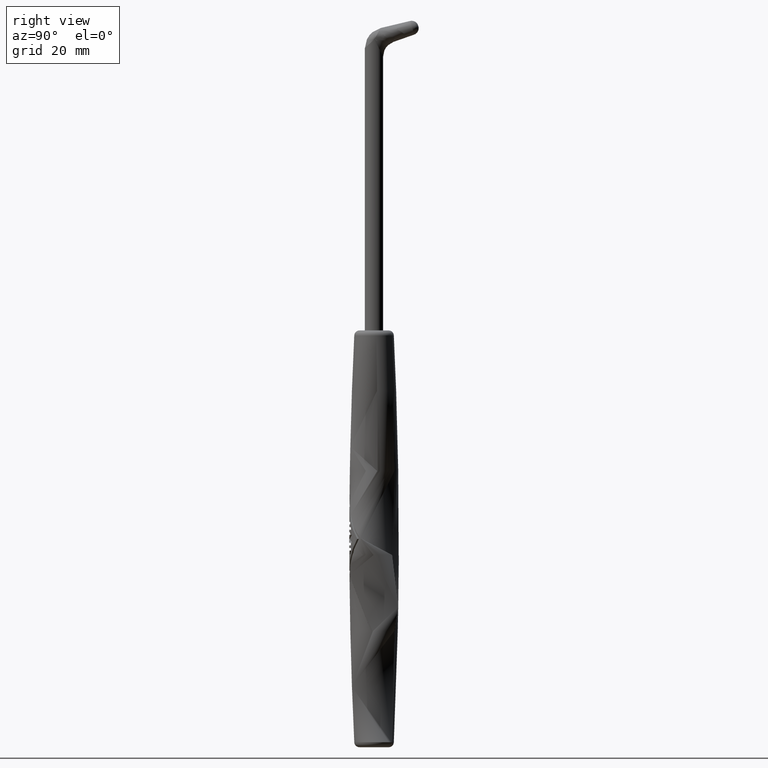
[diagram: clean part render]
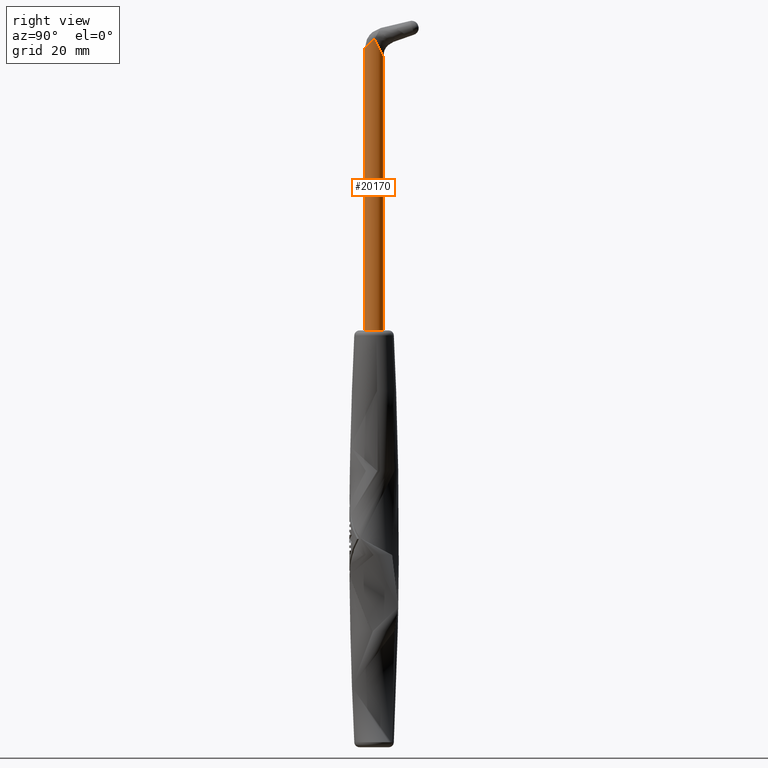
[diagram: same view with one face highlighted and labeled with its STEP entity id]
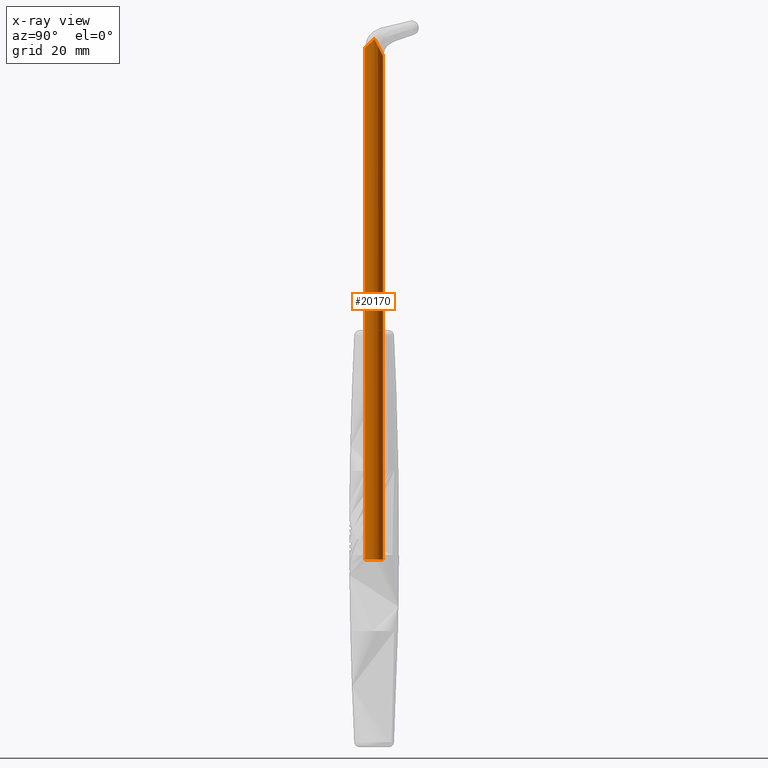
[diagram: x-ray of the same camera — body ghosted, the highlighted face saturated]
A machine part, right view. The second image highlights one B-rep face of the part: STEP entity #20170.
The next image is the same camera in x-ray: the body ghosted, the highlighted face saturated — about 0% of this face is hidden behind the body in this view.
In plain terms, the highlighted cylindrical surface (edge-blend (fillet) strip) has radius 1.75 mm, axis along (-0, 0, 1).
Its self-contained STEP definition (entity closure, byte-faithful):
#15970=CARTESIAN_POINT('',(32.788637,70.370263,3.10862446895044E-15));
#15980=DIRECTION('',(0.,1.,0.));
#15990=DIRECTION('',(-1.,0.,0.));
#16000=AXIS2_PLACEMENT_3D('',#15970,#15980,#15990);
#16010=CIRCLE('',#16000,1.75);
#16020=CARTESIAN_POINT('',(31.038637,70.370263,3.10862446895044E-15));
#16030=VERTEX_POINT('',#16020);
#16040=CARTESIAN_POINT('',(34.538637,70.370263,3.32293765880123E-15));
#16050=VERTEX_POINT('',#16040);
#16060=EDGE_CURVE('',#16030,#16050,#16010,.T.);
#16490=CARTESIAN_POINT('',(32.788637,70.370263,3.10862446895044E-15));
#16500=DIRECTION('',(0.,1.,0.));
#16510=DIRECTION('',(-1.,0.,0.));
#16520=AXIS2_PLACEMENT_3D('',#16490,#16500,#16510);
#16530=CYLINDRICAL_SURFACE('',#16520,1.75);
#16540=CARTESIAN_POINT('',(32.8818339103872,170.300034090721,
1.74751661963321));
#16550=CARTESIAN_POINT('',(32.9056967044384,170.251268774803,
1.74624399157704));
#16560=CARTESIAN_POINT('',(32.9296865955682,170.202588577831,
1.74447193718717));
#16570=CARTESIAN_POINT('',(32.9774791175719,170.105269122261,
1.73994644469559));
#16580=CARTESIAN_POINT('',(33.001345146196,170.056672140882,
1.73719170132104));
#16590=CARTESIAN_POINT('',(33.0489921630432,169.959653746494,
1.73069109803787));
#16600=CARTESIAN_POINT('',(33.0727720454963,169.911234578219,
1.72694822988534));
#16610=CARTESIAN_POINT('',(33.1202199063838,169.814626524287,
1.71846776987033));
#16620=CARTESIAN_POINT('',(33.1438867573744,169.766439925433,
1.71373405807069));
#16630=CARTESIAN_POINT('',(33.1910773432438,169.670360567442,
1.70326838907484));
#16640=CARTESIAN_POINT('',(33.2145999418911,169.622470110411,
1.69754141735576));
#16650=CARTESIAN_POINT('',(33.2614768294399,169.527034327311,
1.68508383455915));
#16660=CARTESIAN_POINT('',(33.2848299694869,169.479491327112,
1.67835909464768));
#16670=CARTESIAN_POINT('',(33.3313376529431,169.384812106845,
1.66390062961375));
#16680=CARTESIAN_POINT('',(33.3544910515783,169.337678201889,
1.65617393063015));
#16690=CARTESIAN_POINT('',(33.4005688080341,169.2438791282,
1.63970539054041));
#16700=CARTESIAN_POINT('',(33.423491593676,169.197217142169,
1.63097197551537));
#16710=CARTESIAN_POINT('',(33.473579560092,169.095259993717,
1.61065680662718));
#16720=CARTESIAN_POINT('',(33.5007247554387,169.040006024938,
1.5988507358513));
#16730=CARTESIAN_POINT('',(33.5545809842655,168.930385347839,
1.57375423334346));
#16740=CARTESIAN_POINT('',(33.5812897573226,168.876023200578,
1.56048389282985));
#16750=CARTESIAN_POINT('',(33.6342070796374,168.768320527889,
1.53244774089826));
#16760=CARTESIAN_POINT('',(33.660414038645,168.714983193645,
1.51770570558163));
#16770=CARTESIAN_POINT('',(33.7122621127561,168.60946357165,
1.48671292646737));
#16780=CARTESIAN_POINT('',(33.7379019018592,168.557283932035,
1.47049020405653));
#16790=CARTESIAN_POINT('',(33.7885210371813,168.454272060163,
1.43653898494477));
#16800=CARTESIAN_POINT('',(33.8134996554843,168.403441250473,
1.41884513554254));
#16810=CARTESIAN_POINT('',(33.8627414551688,168.303238754513,
1.38192929504464));
#16820=CARTESIAN_POINT('',(33.8870042869179,168.25386771876,
1.3627463458886));
#16830=CARTESIAN_POINT('',(33.9347275241281,168.15676155898,
1.32284662071765));
#16840=CARTESIAN_POINT('',(33.9581884275815,168.109025355475,
1.30217616394806));
#16850=CARTESIAN_POINT('',(34.0042204260014,168.015366401193,
1.25929456568071));
#16860=CARTESIAN_POINT('',(34.0267942025498,167.969438124418,
1.2371366479941));
#16870=CARTESIAN_POINT('',(34.0672522280222,167.887125353504,
1.19512459722734));
#16880=CARTESIAN_POINT('',(34.085204136024,167.850602714377,
1.1756445913425));
#16890=CARTESIAN_POINT('',(34.1203707801968,167.779058975759,
1.13563962079819));
#16900=CARTESIAN_POINT('',(34.1375890343932,167.744030676089,
1.11515543851306));
#16910=CARTESIAN_POINT('',(34.1712262036878,167.675601887621,
1.07315052069967));
#16920=CARTESIAN_POINT('',(34.1876492172827,167.642193017562,
1.05167732883803));
#16930=CARTESIAN_POINT('',(34.2196328018527,167.577131242771,
1.00770491211462));
#16940=CARTESIAN_POINT('',(34.2351990883786,167.545466668148,
0.985259489424362));
#16950=CARTESIAN_POINT('',(34.2653862537124,167.4840620215,
0.939383739889866));
#16960=CARTESIAN_POINT('',(34.280015418545,167.45430505105,
0.916015738996426));
#16970=CARTESIAN_POINT('',(34.3082756828337,167.396822481249,
0.868298372563295));
#16980=CARTESIAN_POINT('',(34.3219171710166,167.369075710672,
0.844016714812892));
#16990=CARTESIAN_POINT('',(34.3481290248157,167.315761893308,
0.794507349216558));
#17000=CARTESIAN_POINT('',(34.3607130291013,167.290167068804,
0.769354604818914));
#17010=CARTESIAN_POINT('',(34.3847396045153,167.241299899978,
0.718141686443236));
#17020=CARTESIAN_POINT('',(34.3961996661023,167.217991949096,
0.692162117796169));
#17030=CARTESIAN_POINT('',(34.4176091726527,167.174449130436,
0.640071227923103));
#17040=CARTESIAN_POINT('',(34.4276017381472,167.154126515605,
0.614089941053485));
#17050=CARTESIAN_POINT('',(34.446377798676,167.115940814723,
0.561381739864796));
#17060=CARTESIAN_POINT('',(34.4551851060963,167.098029279349,
0.534734921020235));
#17070=CARTESIAN_POINT('',(34.4715296951512,167.06478949429,
0.480768583958522));
#17080=CARTESIAN_POINT('',(34.479094308888,167.049405643716,
0.453528107745736));
#17090=CARTESIAN_POINT('',(34.4928997614486,167.021330345034,
0.398455803406721));
#17100=CARTESIAN_POINT('',(34.4991703073472,167.008578472519,
0.37069714383954));
#17110=CARTESIAN_POINT('',(34.5103368937928,166.98587012978,
0.314704961214894));
#17120=CARTESIAN_POINT('',(34.5152638528903,166.975850776855,
0.286535577248727));
#17130=CARTESIAN_POINT('',(34.5237127517235,166.958669389667,
0.229812747433579));
#17140=CARTESIAN_POINT('',(34.5272621228544,166.951451568431,
0.201309723403148));
#17150=CARTESIAN_POINT('',(34.5329322665615,166.939921093465,
0.144039124704822));
#17160=CARTESIAN_POINT('',(34.5350742937252,166.935565216286,
0.115308881336235));
#17170=CARTESIAN_POINT('',(34.5379208525574,166.929776659732,
0.0577048169987993));
#17180=CARTESIAN_POINT('',(34.538637,166.928320359028,0.0288582951468016
));
#17190=CARTESIAN_POINT('',(34.538637,166.928320359028,
-0.0288582951492005));
#17200=CARTESIAN_POINT('',(34.5379208521122,166.929776660637,
-0.0577048260094797));
#17210=CARTESIAN_POINT('',(34.5350742932765,166.935565217198,
-0.115308890414527));
#17220=CARTESIAN_POINT('',(34.5329322634824,166.939921099726,
-0.144039155806871));
#17230=CARTESIAN_POINT('',(34.5272621197326,166.951451574779,
-0.201309754932004));
#17240=CARTESIAN_POINT('',(34.5237127434636,166.958669406464,
-0.229812802890076));
#17250=CARTESIAN_POINT('',(34.5152638444699,166.975850793979,
-0.286535633777382));
#17260=CARTESIAN_POINT('',(34.5103368792824,166.985870159288,
-0.314705033976076));
#17270=CARTESIAN_POINT('',(34.4991702924781,167.008578502756,
-0.370697218395039));
#17280=CARTESIAN_POINT('',(34.4928997415625,167.021330385475,
-0.398455882738062));
#17290=CARTESIAN_POINT('',(34.4790942884572,167.049405685265,
-0.453528189245358));
#17300=CARTESIAN_POINT('',(34.4715296720268,167.064789541318,
-0.480768660312594));
#17310=CARTESIAN_POINT('',(34.4551850822854,167.098029327773,
-0.534734999636216));
#17320=CARTESIAN_POINT('',(34.4463777746216,167.115940863644,
-0.561381807392664));
#17330=CARTESIAN_POINT('',(34.4276017133546,167.154126566026,
-0.614090010648896));
#17340=CARTESIAN_POINT('',(34.4176091488594,167.174449178827,
-0.640071285816201));
#17350=CARTESIAN_POINT('',(34.3961996408474,167.21799200046,
-0.692162179240732));
#17360=CARTESIAN_POINT('',(34.384739581594,167.241299946597,
-0.718141735302203));
#17370=CARTESIAN_POINT('',(34.3607130054647,167.290167116877,
-0.769354655198333));
#17380=CARTESIAN_POINT('',(34.3481290047785,167.315761934063,
-0.794507387064875));
#17390=CARTESIAN_POINT('',(34.3219171503732,167.36907575266,
-0.84401675380256));
#17400=CARTESIAN_POINT('',(34.3082756657623,167.396822515973,
-0.868298401389905));
#17410=CARTESIAN_POINT('',(34.2800154009841,167.454305086769,
-0.916015768646253));
#17420=CARTESIAN_POINT('',(34.2653862393937,167.484062050626,
-0.939383761651787));
#17430=CARTESIAN_POINT('',(34.2351990736577,167.545466698092,
-0.985259511794234));
#17440=CARTESIAN_POINT('',(34.2196327899436,167.577131266996,
-1.00770492848914));
#17450=CARTESIAN_POINT('',(34.1876492050731,167.642193042399,
-1.05167734562284));
#17460=CARTESIAN_POINT('',(34.1712261938464,167.675601907642,
-1.07315053299066));
#17470=CARTESIAN_POINT('',(34.1375890243204,167.744030696581,
-1.11515545109032));
#17480=CARTESIAN_POINT('',(34.1203707720683,167.779058992295,
-1.13563963004623));
#17490=CARTESIAN_POINT('',(34.08520412772,167.850602731271,
-1.17564460078769));
#17500=CARTESIAN_POINT('',(34.0672522199581,167.887125369911,
-1.19512460560227));
#17510=CARTESIAN_POINT('',(34.0267941926085,167.969438144644,
-1.23713665831583));
#17520=CARTESIAN_POINT('',(34.0042204165623,168.015366420399,
-1.25929457447513));
#17530=CARTESIAN_POINT('',(33.9581884179386,168.109025375094,
-1.3021761729296));
#17540=CARTESIAN_POINT('',(33.934727516512,168.156761574477,
-1.32284662708643));
#17550=CARTESIAN_POINT('',(33.8870042791538,168.253867734558,
-1.36274635237857));
#17560=CARTESIAN_POINT('',(33.8627414489583,168.303238767151,
-1.38192929970185));
#17570=CARTESIAN_POINT('',(33.8134996491668,168.403441263328,
-1.41884514027735));
#17580=CARTESIAN_POINT('',(33.7885210320535,168.454272070599,
-1.43653898838533));
#17590=CARTESIAN_POINT('',(33.7379018966485,168.557283942639,
-1.47049020755021));
#17600=CARTESIAN_POINT('',(33.7122621084635,168.609463580386,
-1.4867129290345));
#17610=CARTESIAN_POINT('',(33.6604140342945,168.714983202499,
-1.51770570818096));
#17620=CARTESIAN_POINT('',(33.6342070760006,168.768320535291,
-1.53244774282625));
#17630=CARTESIAN_POINT('',(33.5812897536424,168.876023208068,
-1.56048389477844));
#17640=CARTESIAN_POINT('',(33.5545809811394,168.930385354201,
-1.57375423480135));
#17650=CARTESIAN_POINT('',(33.5007247522803,169.040006031367,
-1.5988507373219));
#17660=CARTESIAN_POINT('',(33.4735795577721,169.095259998439,
-1.61065680756926));
#17670=CARTESIAN_POINT('',(33.4234915917186,169.197217146153,
-1.63097197630828));
#17680=CARTESIAN_POINT('',(33.4005688065874,169.243879131145,
-1.63970539105829));
#17690=CARTESIAN_POINT('',(33.3544910501277,169.337678204842,
-1.65617393114774));
#17700=CARTESIAN_POINT('',(33.3313376516293,169.384812109519,
-1.6639006300229));
#17710=CARTESIAN_POINT('',(33.2848299681712,169.479491329791,
-1.67835909505601));
#17720=CARTESIAN_POINT('',(33.261476828235,169.527034329764,
-1.68508383487992));
#17730=CARTESIAN_POINT('',(33.214599940686,169.622470112865,
-1.69754141767545));
#17740=CARTESIAN_POINT('',(33.1910773421276,169.670360569715,
-1.70326838932283));
#17750=CARTESIAN_POINT('',(33.1438867562592,169.766439927703,
-1.71373405831756));
#17760=CARTESIAN_POINT('',(33.120219905339,169.814626526414,
-1.71846777005738));
#17770=CARTESIAN_POINT('',(33.0727720444538,169.911234580341,
-1.72694823007132));
#17780=CARTESIAN_POINT('',(33.0489921620553,169.959653748505,
-1.73069109817287));
#17790=CARTESIAN_POINT('',(33.0013451452113,170.056672142887,
-1.73719170145516));
#17800=CARTESIAN_POINT('',(32.9774791166277,170.105269124184,
-1.7399464447851));
#17810=CARTESIAN_POINT('',(32.929686594628,170.202588579745,
-1.74447193727608));
#17820=CARTESIAN_POINT('',(32.9056967044395,170.25126877481,
-1.74624399157697));
#17830=CARTESIAN_POINT('',(32.8818339103872,170.300034090721,
-1.74751661963321));
#17840=B_SPLINE_CURVE_WITH_KNOTS('',3,(#16540,#16550,#16560,#16570,
#16580,#16590,#16600,#16610,#16620,#16630,#16640,#16650,#16660,#16670,
#16680,#16690,#16700,#16710,#16720,#16730,#16740,#16750,#16760,#16770,
#16780,#16790,#16800,#16810,#16820,#16830,#16840,#16850,#16860,#16870,
#16880,#16890,#16900,#16910,#16920,#16930,#16940,#16950,#16960,#16970,
#16980,#16990,#17000,#17010,#17020,#17030,#17040,#17050,#17060,#17070,
#17080,#17090,#17100,#17110,#17120,#17130,#17140,#17150,#17160,#17170,
#17180,#17190,#17200,#17210,#17220,#17230,#17240,#17250,#17260,#17270,
#17280,#17290,#17300,#17310,#17320,#17330,#17340,#17350,#17360,#17370,
#17380,#17390,#17400,#17410,#17420,#17430,#17440,#17450,#17460,#17470,
#17480,#17490,#17500,#17510,#17520,#17530,#17540,#17550,#17560,#17570,
#17580,#17590,#17600,#17610,#17620,#17630,#17640,#17650,#17660,#17670,
#17680,#17690,#17700,#17710,#17720,#17730,#17740,#17750,#17760,#17770,
#17780,#17790,#17800,#17810,#17820,#17830),.UNSPECIFIED.,.F.,.F.,(4,2,2,
2,2,2,2,2,2,2,2,2,2,2,2,2,2,2,2,2,2,2,2,2,2,2,2,2,2,2,2,2,2,2,2,2,2,2,2,
2,2,2,2,2,2,2,2,2,2,2,2,2,2,2,2,2,2,2,2,2,2,2,2,2,4),(0.,
0.162799390849189,0.325266788231872,0.487274679265505,0.648696067641975,
0.809376221792196,0.969203866193017,1.12803609025775,1.28573264515915,
1.47316581196533,1.65847958874629,1.84137693677248,2.02157362763913,
2.19860181458313,2.37229421414419,2.54228916022582,2.70825749801857,
2.84240937059637,2.97335312531833,3.10087871261957,3.22481393892224,
3.34486844051977,3.46103421673881,3.5731987471524,3.68133301004849,
3.78256247144295,3.88011838530889,3.97419242748597,4.06510618151262,
4.1532281888193,4.23917161247167,4.32358860690368,4.40722169963656,
4.49085479237639,4.57527183979142,4.66121550527819,4.74933810838272,
4.84025295532393,4.93432867767513,5.03188689394301,5.13311927084051,
5.24125714320837,5.3534258519196,5.4695963156386,5.58965595544853,
5.71359672402585,5.84112820599283,5.97207816790532,6.10623652458081,
6.27221303142287,6.44221648509276,6.61591768861235,6.79295493801229,
6.97316092644832,7.15606777163727,7.34139122154182,7.52883421504984,
7.68653906380888,7.84537966070688,8.00521574786088,8.16590440579406,
8.32733435202593,8.48935084594445,8.65182688385247,8.81463494561518),
.UNSPECIFIED.);
#17850=CARTESIAN_POINT('',(32.8818339103872,170.300034090721,
1.74751661963321));
#17860=VERTEX_POINT('',#17850);
#17870=CARTESIAN_POINT('',(34.538637,166.928320359028,
3.32293765880123E-15));
#17880=VERTEX_POINT('',#17870);
#17890=EDGE_CURVE('',#17860,#17880,#17840,.T.);
#17900=ORIENTED_EDGE('',*,*,#17890,.F.);
#17910=CARTESIAN_POINT('',(34.538637,70.370263,3.32293765880123E-15));
#17920=DIRECTION('',(0.,1.,0.));
#17930=VECTOR('',#17920,1.);
#17940=LINE('',#17910,#17930);
#17950=EDGE_CURVE('',#16050,#17880,#17940,.T.);
#17960=ORIENTED_EDGE('',*,*,#17950,.T.);
#17970=ORIENTED_EDGE('',*,*,#16060,.T.);
#17980=CARTESIAN_POINT('',(31.038637,70.370263,3.10862446895044E-15));
#17990=DIRECTION('',(0.,1.,0.));
#18000=VECTOR('',#17990,1.);
#18010=LINE('',#17980,#18000);
#18020=CARTESIAN_POINT('',(31.038637,168.542042381813,
3.10862446895044E-15));
#18030=VERTEX_POINT('',#18020);
#18040=EDGE_CURVE('',#16030,#18030,#18010,.T.);
#18050=ORIENTED_EDGE('',*,*,#18040,.F.);
#18060=CARTESIAN_POINT('',(32.8818339103872,170.300034090721,
-1.74751661963321));
#18070=CARTESIAN_POINT('',(32.8737130166793,170.292343413999,
-1.74794971548744));
#18080=CARTESIAN_POINT('',(32.8655073950846,170.2847398914,
-1.7483299870162));
#18090=CARTESIAN_POINT('',(32.8491736240152,170.269445212637,
-1.74897173160947));
#18100=CARTESIAN_POINT('',(32.8410041741513,170.261798327739,
-1.74923539866368));
#18110=CARTESIAN_POINT('',(32.8164930987876,170.238855429176,
-1.74985462830517));
#18120=CARTESIAN_POINT('',(32.8001442365843,170.223563459177,
-1.75003850408097));
#18130=CARTESIAN_POINT('',(32.75111240794,170.177669552262,
-1.74990294003556));
#18140=CARTESIAN_POINT('',(32.7184080433076,170.147099853308,
-1.74889572994675));
#18150=CARTESIAN_POINT('',(32.6531484743628,170.08590318285,
-1.74505337063615));
#18160=CARTESIAN_POINT('',(32.6205522360877,170.055333818733,
-1.74221580285392));
#18170=CARTESIAN_POINT('',(32.555610367095,169.994137148272,
-1.73472389281858));
#18180=CARTESIAN_POINT('',(32.5232224913506,169.963566106637,
-1.73006457221018));
#18190=CARTESIAN_POINT('',(32.4588022570885,169.902369436334,
-1.71894663805388));
#18200=CARTESIAN_POINT('',(32.4267294120209,169.871801433272,
-1.71248103324567));
#18210=CARTESIAN_POINT('',(32.3630331086988,169.810604762812,
-1.69777198815931));
#18220=CARTESIAN_POINT('',(32.3313710398862,169.780035066247,
-1.68951952369823));
#18230=CARTESIAN_POINT('',(32.2685986908782,169.71883839579,
-1.67126555799536));
#18240=CARTESIAN_POINT('',(32.2374489705472,169.68826905769,
-1.66125258411549));
#18250=CARTESIAN_POINT('',(32.1912081044137,169.642375168765,
-1.64494556068171));
#18260=CARTESIAN_POINT('',(32.1758666380311,169.627083216241,
-1.63929242843233));
#18270=CARTESIAN_POINT('',(32.1529810314545,169.604140317932,
-1.63049326601601));
#18280=CARTESIAN_POINT('',(32.1453725465435,169.596493435955,
-1.62750657257724));
#18290=CARTESIAN_POINT('',(32.1339921729528,169.585022493101,
-1.62294696492642));
#18300=CARTESIAN_POINT('',(32.1302040220449,169.581198984853,
-1.62141380112631));
#18310=CARTESIAN_POINT('',(32.1226383516983,169.573551576133,
-1.61832088976597));
#18320=CARTESIAN_POINT('',(32.1189851325081,169.569637253403,
-1.61681297404693));
#18330=CARTESIAN_POINT('',(32.1117655768605,169.562719982257,
-1.61380235619167));
#18340=CARTESIAN_POINT('',(32.1080618754804,169.559937031455,
-1.61224440488685));
#18350=CARTESIAN_POINT('',(32.1010475217495,169.553968227419,
-1.60926543053615));
#18360=CARTESIAN_POINT('',(32.0975456828709,169.550984292657,
-1.60776469267868));
#18370=CARTESIAN_POINT('',(32.0870547730827,169.54203199317,
-1.60322813119501));
#18380=CARTESIAN_POINT('',(32.0800804220924,169.536064119388,
-1.6001580039814));
#18390=CARTESIAN_POINT('',(32.0592193132849,169.518158722119,
-1.59081176554379));
#18400=CARTESIAN_POINT('',(32.045391993365,169.506224393687,
-1.58439865416571));
#18410=CARTESIAN_POINT('',(32.00417550198,169.470407208961,
-1.56462420611024));
#18420=CARTESIAN_POINT('',(31.9770319151832,169.446549792438,
-1.55071787430883));
#18430=CARTESIAN_POINT('',(31.9235304475768,169.39878975717,
-1.52151878414446));
#18440=CARTESIAN_POINT('',(31.8971504304843,169.374932558043,
-1.50621394342115));
#18450=CARTESIAN_POINT('',(31.8452469582549,169.327172522773,
-1.47426048549915));
#18460=CARTESIAN_POINT('',(31.8197012020443,169.303314311826,
-1.45759805683956));
#18470=CARTESIAN_POINT('',(31.7695373965672,169.25555427663,
-1.42297744865094));
#18480=CARTESIAN_POINT('',(31.744898615864,169.231697893823,
-1.40500495815032));
#18490=CARTESIAN_POINT('',(31.6966113998375,169.183937858553,
-1.3678116970531));
#18500=CARTESIAN_POINT('',(31.6729438695468,169.160080459084,
-1.34857612970262));
#18510=CARTESIAN_POINT('',(31.6266650437211,169.112320423816,
-1.30891173530862));
#18520=CARTESIAN_POINT('',(31.6040346183904,169.088463224808,
-1.28846650869173));
#18530=CARTESIAN_POINT('',(31.5709254009163,169.052646050926,
-1.2569449857049));
#18540=CARTESIAN_POINT('',(31.5600243831917,169.040711733027,
-1.24629180888459));
#18550=CARTESIAN_POINT('',(31.5438858759548,169.022806335911,
-1.23010271969175));
#18560=CARTESIAN_POINT('',(31.5385413898594,169.016838462393,
-1.2246709873638));
#18570=CARTESIAN_POINT('',(31.5305784034439,169.00788616285,
-1.21647157108834));
#18580=CARTESIAN_POINT('',(31.5279330788765,169.004902258246,
-1.21372984641451));
#18590=CARTESIAN_POINT('',(31.5226591142078,168.998932873313,
-1.20822784244032));
#18600=CARTESIAN_POINT('',(31.5202154235394,168.995652467188,
-1.20566301980984));
#18610=CARTESIAN_POINT('',(31.5152174500431,168.990859020139,
-1.2003803009793));
#18620=CARTESIAN_POINT('',(31.5127071325961,168.989438434672,
-1.19771230348624));
#18630=CARTESIAN_POINT('',(31.508018788043,168.985908437638,
-1.19269810435609));
#18640=CARTESIAN_POINT('',(31.505682912107,168.984144166732,
-1.19018510345967));
#18650=CARTESIAN_POINT('',(31.4986973021868,168.978851039764,
-1.18262532713074));
#18660=CARTESIAN_POINT('',(31.4940698408032,168.975322487941,
-1.17755804897895));
#18670=CARTESIAN_POINT('',(31.4802775237675,168.964735745634,
-1.16227528214918));
#18680=CARTESIAN_POINT('',(31.4712022529584,168.957679511926,
-1.15197831492302));
#18690=CARTESIAN_POINT('',(31.4443449274594,168.936502118495,
-1.12077302761672));
#18700=CARTESIAN_POINT('',(31.4269275732669,168.922396550689,
-1.09954571933988));
#18710=CARTESIAN_POINT('',(31.3931148583757,168.894157704676,
-1.05630076834268));
#18720=CARTESIAN_POINT('',(31.3767153537935,168.88005222202,
-1.0342778256329));
#18730=CARTESIAN_POINT('',(31.3449741833676,168.851813376006,
-0.989490287465275));
#18740=CARTESIAN_POINT('',(31.3296283429813,168.837707529752,
-0.966719741919608));
#18750=CARTESIAN_POINT('',(31.300028983011,168.809468683755,
-0.920488763549186));
#18760=CARTESIAN_POINT('',(31.2857718504947,168.795363492527,
-0.897022685345857));
#18770=CARTESIAN_POINT('',(31.2583798255575,168.767124646513,
-0.849450609030433));
#18780=CARTESIAN_POINT('',(31.2452419011399,168.753019091902,
-0.825339276060906));
#18790=CARTESIAN_POINT('',(31.220117849448,168.724780245889,
-0.776531412947988));
#18800=CARTESIAN_POINT('',(31.2081286502498,168.710674756218,
-0.751828910900399));
#18810=CARTESIAN_POINT('',(31.1910281359239,168.689497366691,
-0.714376839209618));
#18820=CARTESIAN_POINT('',(31.1854745487442,168.682441136773,
-0.70182512452883));
#18830=CARTESIAN_POINT('',(31.1773670013698,168.671854394522,
-0.682902686992538));
#18840=CARTESIAN_POINT('',(31.1747015517456,168.668325842794,
-0.676579232044793));
#18850=CARTESIAN_POINT('',(31.1707593314389,168.663032715805,
-0.667070927045719));
#18860=CARTESIAN_POINT('',(31.1694546020654,168.661268422408,
-0.663897684021718));
#18870=CARTESIAN_POINT('',(31.1668623690911,168.657737784003,
-0.657539994116148));
#18880=CARTESIAN_POINT('',(31.1656651231369,168.65551999954,
-0.654580573162853));
#18890=CARTESIAN_POINT('',(31.1629878726754,168.652950931351,
-0.647902282753887));
#18900=CARTESIAN_POINT('',(31.1615478533967,168.652962200081,
-0.644278500163942));
#18910=CARTESIAN_POINT('',(31.1588224311594,168.651710954408,
-0.637352565463912));
#18920=CARTESIAN_POINT('',(31.1574720389725,168.651085938437,
-0.633888548653944));
#18930=CARTESIAN_POINT('',(31.1534541076416,168.649210867709,
-0.623483919224714));
#18940=CARTESIAN_POINT('',(31.1508197147446,168.647960922566,
-0.616530477057174));
#18950=CARTESIAN_POINT('',(31.1430497052125,168.644210531283,
-0.595620361071451));
#18960=CARTESIAN_POINT('',(31.138047542016,168.641711086262,
-0.581614649803032));
#18970=CARTESIAN_POINT('',(31.1235782766676,168.634208304268,
-0.539410917819829));
#18980=CARTESIAN_POINT('',(31.1146505449652,168.62921297329,
-0.511032330468755));
#18990=CARTESIAN_POINT('',(31.0900492142285,168.614191392909,
-0.425251870869701));
#19000=CARTESIAN_POINT('',(31.0765725459386,168.604229061761,
-0.36725310727777));
#19010=CARTESIAN_POINT('',(31.0555833265446,168.584190782059,
-0.250129341012848));
#19020=CARTESIAN_POINT('',(31.0480810044909,168.574228677172,
-0.191061307885118));
#19030=CARTESIAN_POINT('',(31.0413633603415,168.559207112932,
-0.10207609059683));
#19040=CARTESIAN_POINT('',(31.0398808043466,168.554211796604,
-0.0723633751373377));
#19050=CARTESIAN_POINT('',(31.0387940177361,168.546709015332,
-0.0277614340960883));
#19060=CARTESIAN_POINT('',(31.0386212856952,168.544209571013,
-0.0128902665455744));
#19070=CARTESIAN_POINT('',(31.0386465392142,168.54045917974,
0.00941680314552497));
#19080=CARTESIAN_POINT('',(31.0387023541931,168.539209155354,
0.0168528154202708));
#19090=CARTESIAN_POINT('',(31.0389089833753,168.536706154519,
0.0317398744706663));
#19100=CARTESIAN_POINT('',(31.0390561711078,168.534016107007,
0.0390382461636219));
#19110=CARTESIAN_POINT('',(31.0394255450882,168.534370619574,
0.0529078027685918));
#19120=CARTESIAN_POINT('',(31.03962024249,168.536524590063,
0.0589830724803619));
#19130=CARTESIAN_POINT('',(31.0400828843144,168.538843848812,
0.0713932562007606));
#19140=CARTESIAN_POINT('',(31.040347004089,168.540002537232,
0.0775924345649567));
#19150=CARTESIAN_POINT('',(31.0412382178471,168.543478815481,
0.0961846160923301));
#19160=CARTESIAN_POINT('',(31.04196418583,168.545795810705,
0.10857285449397));
#19170=CARTESIAN_POINT('',(31.0445371923932,168.552749648774,
0.145711432985265));
#19180=CARTESIAN_POINT('',(31.0467791269925,168.557381348835,
0.170432144090292));
#19190=CARTESIAN_POINT('',(31.0550801349478,168.571299282052,
0.244427520936759));
#19200=CARTESIAN_POINT('',(31.0627119019924,168.580544402908,
0.293507802744411));
#19210=CARTESIAN_POINT('',(31.0821252956537,168.599107753766,
0.390873376020142));
#19220=CARTESIAN_POINT('',(31.0939008334043,168.608353008151,
0.439128173933932));
#19230=CARTESIAN_POINT('',(31.1146137810587,168.622270950934,
0.510648827870939));
#19240=CARTESIAN_POINT('',(31.1220243395477,168.626902659683,
0.53433903174397));
#19250=CARTESIAN_POINT('',(31.1338917082279,168.633856498182,
0.569624441008691));
#19260=CARTESIAN_POINT('',(31.1379724693324,168.636173493824,
0.581343780770108));
#19270=CARTESIAN_POINT('',(31.1442799948436,168.639649772078,
0.598856022176374));
#19280=CARTESIAN_POINT('',(31.1464135664381,168.640808432128,
0.604682303906465));
#19290=CARTESIAN_POINT('',(31.1507454297368,168.64312742144,
0.616319564132629));
#19300=CARTESIAN_POINT('',(31.1530366859543,168.643401765891,
0.622371887332824));
#19310=CARTESIAN_POINT('',(31.1566198317906,168.646840170097,
0.631693299530735));
#19320=CARTESIAN_POINT('',(31.1578840683133,168.649348578474,
0.634948170203474));
#19330=CARTESIAN_POINT('',(31.1606419049559,168.653259154368,
0.641986165736226));
#19340=CARTESIAN_POINT('',(31.1620312607543,168.655213057746,
0.645498284142648));
#19350=CARTESIAN_POINT('',(31.166233481938,168.661075095119,
0.656021255306219));
#19360=CARTESIAN_POINT('',(31.1690804107795,168.66498285283,
0.663018489317101));
#19370=CARTESIAN_POINT('',(31.1777566185281,168.676707581217,
0.683953685225398));
#19380=CARTESIAN_POINT('',(31.1837217047203,168.684521926996,
0.697836042762243));
#19390=CARTESIAN_POINT('',(31.2021520727566,168.707976611198,
0.739241836320194));
#19400=CARTESIAN_POINT('',(31.2151558343686,168.723595966546,
0.766531113514783));
#19410=CARTESIAN_POINT('',(31.2425547896194,168.754871993872,
0.820391803026753));
#19420=CARTESIAN_POINT('',(31.2569541249445,168.770491447084,
0.846971363521897));
#19430=CARTESIAN_POINT('',(31.287105012455,168.801767474411,
0.89934120795541));
#19440=CARTESIAN_POINT('',(31.3028606505081,168.817386387224,
0.925138701240015));
#19450=CARTESIAN_POINT('',(31.3356825894347,168.848662414519,
0.975877216604274));
#19460=CARTESIAN_POINT('',(31.3527538441075,168.864282301616,
1.00082590043977));
#19470=CARTESIAN_POINT('',(31.3881587885179,168.895558328942,
1.04979697899596));
#19480=CARTESIAN_POINT('',(31.4064982684281,168.911177675364,
1.07382747837133));
#19490=CARTESIAN_POINT('',(31.4443912432873,168.94245370269,
1.12089975343703));
#19500=CARTESIAN_POINT('',(31.4639504807149,168.958073174002,
1.14394866314404));
#19510=CARTESIAN_POINT('',(31.4941603736611,168.981527863979,
1.17773448243908));
#19520=CARTESIAN_POINT('',(31.5043768273228,168.989342215368,
1.18886671070771));
#19530=CARTESIAN_POINT('',(31.5199146187817,169.001066943836,
1.20536325738649));
#19540=CARTESIAN_POINT('',(31.5251295690886,169.004974701688,
1.2108286562778));
#19550=CARTESIAN_POINT('',(31.5330046795979,169.010836739031,
1.21897569366265));
#19560=CARTESIAN_POINT('',(31.5356384095529,169.012790610219,
1.22168277359198));
#19570=CARTESIAN_POINT('',(31.5409257952438,169.01670024788,
1.22708232747073));
#19580=CARTESIAN_POINT('',(31.5437723852172,169.018244915227,
1.22996923445391));
#19590=CARTESIAN_POINT('',(31.5491035939146,169.023357729221,
1.23534348533555));
#19600=CARTESIAN_POINT('',(31.5516126331532,169.026673419647,
1.23785510448612));
#19610=CARTESIAN_POINT('',(31.5570186666256,169.032742474563,
1.24323401496243));
#19620=CARTESIAN_POINT('',(31.5597298653109,169.035776258183,
1.24591403725448));
#19630=CARTESIAN_POINT('',(31.5678898776616,169.044878191385,
1.25392766864522));
#19640=CARTESIAN_POINT('',(31.573364934286,169.05094581886,
1.25923466486876));
#19650=CARTESIAN_POINT('',(31.5898927193395,169.06915048778,
1.27504693118455));
#19660=CARTESIAN_POINT('',(31.6010501157638,169.081284305588,
1.28544541699675));
#19670=CARTESIAN_POINT('',(31.6349183060302,169.117700058804,
1.31619264704085));
#19680=CARTESIAN_POINT('',(31.6580420019604,169.141956191057,
1.33610810598527));
#19690=CARTESIAN_POINT('',(31.7052786803874,169.190514353285,
1.37468711078356));
#19700=CARTESIAN_POINT('',(31.7294117606744,169.214770691665,
1.39336707466801));
#19710=CARTESIAN_POINT('',(31.7786000217605,169.263328853894,
1.42942478357403));
#19720=CARTESIAN_POINT('',(31.8036752461437,169.287584151291,
1.44681730964825));
#19730=CARTESIAN_POINT('',(31.8546806606393,169.336142313445,
1.480255178612));
#19740=CARTESIAN_POINT('',(31.8806325482909,169.360399482483,
1.49631474898499));
#19750=CARTESIAN_POINT('',(31.9333157209908,169.408957644713,
1.52704139401022));
#19760=CARTESIAN_POINT('',(31.9600702887989,169.433213778,
1.54172212965727));
#19770=CARTESIAN_POINT('',(32.0142872390266,169.481771940229,
1.56965357623745));
#19780=CARTESIAN_POINT('',(32.0417727103726,169.506028295151,
1.58291618335254));
#19790=CARTESIAN_POINT('',(32.0834761051036,169.542444059468,
1.60171178417701));
#19800=CARTESIAN_POINT('',(32.0974616133299,169.55457788806,
1.60779635278002));
#19810=CARTESIAN_POINT('',(32.1185535171097,169.572782557136,
1.61664660976561));
#19820=CARTESIAN_POINT('',(32.1256037442468,169.578850184881,
1.61955087498188));
#19830=CARTESIAN_POINT('',(32.1362068457911,169.587952118026,
1.6238378699233));
#19840=CARTESIAN_POINT('',(32.1397458191257,169.590985933482,
1.62525529383585));
#19850=CARTESIAN_POINT('',(32.1468338227934,169.597054437883,
1.62806732681191));
#19860=CARTESIAN_POINT('',(32.1505686535218,169.599897321317,
1.62953423654172));
#19870=CARTESIAN_POINT('',(32.1613572332605,169.610233478565,
1.63373300787602));
#19880=CARTESIAN_POINT('',(32.1683731389234,169.617640437842,
1.63640844720673));
#19890=CARTESIAN_POINT('',(32.1828668294774,169.632159977972,
1.64182896844221));
#19900=CARTESIAN_POINT('',(32.1901316971582,169.639419157723,
1.64449118649425));
#19910=CARTESIAN_POINT('',(32.211977225325,169.661198813461,
1.65233257162279));
#19920=CARTESIAN_POINT('',(32.2266121376084,169.675715773659,
1.65736763494931));
#19930=CARTESIAN_POINT('',(32.2706991029848,169.719281951473,
1.67188449201229));
#19940=CARTESIAN_POINT('',(32.3003624167997,169.748303519754,
1.68078712617534));
#19950=CARTESIAN_POINT('',(32.360085943838,169.80639584424,
1.69699776144083));
#19960=CARTESIAN_POINT('',(32.3901799159281,169.835417700663,
1.70431492835));
#19970=CARTESIAN_POINT('',(32.4506790431701,169.89351002515,
1.71733568027936));
#19980=CARTESIAN_POINT('',(32.481117263393,169.922530520237,
1.72304646336512));
#19990=CARTESIAN_POINT('',(32.542221743344,169.980622844617,
1.73284069093344));
#20000=CARTESIAN_POINT('',(32.5729225514389,170.00964578239,
1.73692967602193));
#20010=CARTESIAN_POINT('',(32.6344604334526,170.067738106877,
1.74346981784972));
#20020=CARTESIAN_POINT('',(32.6653334496785,170.096759695625,
1.74592487398957));
#20030=CARTESIAN_POINT('',(32.7271315631556,170.154852020111,
1.749192525793));
#20040=CARTESIAN_POINT('',(32.7580916168237,170.183873878924,
1.75000697177869));
#20050=CARTESIAN_POINT('',(32.8045071420051,170.227440071239,
1.74999644612166));
#20060=CARTESIAN_POINT('',(32.8199825869374,170.241957045524,
1.74978766630894));
#20070=CARTESIAN_POINT('',(32.8431845035372,170.263736701466,
1.74916678159674));
#20080=CARTESIAN_POINT('',(32.8509175606948,170.270995952015,
1.74890851439016));
#20090=CARTESIAN_POINT('',(32.8663790299821,170.285515223645,
1.74828946028903));
#20100=CARTESIAN_POINT('',(32.8741427971335,170.292737442913,
1.74792679484106));
#20110=CARTESIAN_POINT('',(32.8818339103872,170.300034090721,
1.74751661963321));
#20120=B_SPLINE_CURVE_WITH_KNOTS('',3,(#18060,#18070,#18080,#18090,
#18100,#18110,#18120,#18130,#18140,#18150,#18160,#18170,#18180,#18190,
#18200,#18210,#18220,#18230,#18240,#18250,#18260,#18270,#18280,#18290,
#18300,#18310,#18320,#18330,#18340,#18350,#18360,#18370,#18380,#18390,
#18400,#18410,#18420,#18430,#18440,#18450,#18460,#18470,#18480,#18490,
#18500,#18510,#18520,#18530,#18540,#18550,#18560,#18570,#18580,#18590,
#18600,#18610,#18620,#18630,#18640,#18650,#18660,#18670,#18680,#18690,
#18700,#18710,#18720,#18730,#18740,#18750,#18760,#18770,#18780,#18790,
#18800,#18810,#18820,#18830,#18840,#18850,#18860,#18870,#18880,#18890,
#18900,#18910,#18920,#18930,#18940,#18950,#18960,#18970,#18980,#18990,
#19000,#19010,#19020,#19030,#19040,#19050,#19060,#19070,#19080,#19090,
#19100,#19110,#19120,#19130,#19140,#19150,#19160,#19170,#19180,#19190,
#19200,#19210,#19220,#19230,#19240,#19250,#19260,#19270,#19280,#19290,
#19300,#19310,#19320,#19330,#19340,#19350,#19360,#19370,#19380,#19390,
#19400,#19410,#19420,#19430,#19440,#19450,#19460,#19470,#19480,#19490,
#19500,#19510,#19520,#19530,#19540,#19550,#19560,#19570,#19580,#19590,
#19600,#19610,#19620,#19630,#19640,#19650,#19660,#19670,#19680,#19690,
#19700,#19710,#19720,#19730,#19740,#19750,#19760,#19770,#19780,#19790,
#19800,#19810,#19820,#19830,#19840,#19850,#19860,#19870,#19880,#19890,
#19900,#19910,#19920,#19930,#19940,#19950,#19960,#19970,#19980,#19990,
#20000,#20010,#20020,#20030,#20040,#20050,#20060,#20070,#20080,#20090,
#20100,#20110),.UNSPECIFIED.,.F.,.F.,(4,2,2,2,2,2,2,2,2,2,2,2,2,2,2,2,2,
2,2,2,2,2,2,2,2,2,2,2,2,2,2,2,2,2,2,2,2,2,2,2,2,2,2,2,2,2,2,2,2,2,2,2,2,
2,2,2,2,2,2,2,2,2,2,2,2,2,2,2,2,2,2,2,2,2,2,2,2,2,2,2,2,2,2,2,2,2,2,2,2,
2,2,2,2,2,2,2,2,2,2,2,2,2,4),(0.,0.0335570423946745,0.0671140033220263,
0.134228359959245,0.268460677546218,0.40269465131225,0.536928900567492,
0.671176763097399,0.805424915015241,0.93967489266971,1.00679823691956,
1.04035969383881,1.05714039479766,1.07392152322313,1.08823843948399,
1.10255304635679,1.131182304827,1.18844118498715,1.30296193723107,
1.41748380840065,1.53200586359694,1.64653687274226,1.76106807055009,
1.87560044377299,1.93286523825919,1.96149745533376,1.97581354097002,
1.99013443305859,2.00136527278504,2.01258871468899,2.03503563465435,
2.0799297665616,2.1697204091408,2.25951159954066,2.34930287888876,
2.43909841285842,2.5288940357525,2.61869020390694,2.66358714816735,
2.68603547500614,2.69725962009121,2.70849552952448,2.7193111377666,
2.73010518987843,2.75169334502998,2.79487006429764,2.88122679860559,
3.05396699911848,3.22671165644318,3.31307117451561,3.35624931055129,
3.37783817443423,3.39947965760153,3.41758770487172,3.4356656309979,
3.47182171958916,3.54413577637347,3.68877873898273,3.83341932286217,
3.90573189257676,3.94188722425077,3.95996477172725,3.97806734986797,
3.99045525278112,4.00282731093292,4.02757147613525,4.07706019364407,
4.17604065885191,4.27502031879902,4.37399984772835,4.47297307906009,
4.57194617911565,4.67091847034223,4.72040302790588,4.74514511212133,
4.75751613015824,4.76989664429476,4.78431863411431,4.79873625438761,
4.8275715406232,4.88524247242532,5.00058711067704,5.11593055547762,
5.23127380885162,5.34660798197154,5.46194196862141,5.57727482222573,
5.63493975640815,5.66377204237344,5.67818816305766,5.6926063402071,
5.72440648508366,5.75620600945169,5.81980542321345,5.94700704751878,
6.07420720750291,6.2014071350839,6.32859613895848,6.45578492109137,
6.58297236907512,6.64656456786265,6.67836048297356,6.71015646092111),
.UNSPECIFIED.);
#20130=EDGE_CURVE('',#18030,#17860,#20120,.T.);
#20140=ORIENTED_EDGE('',*,*,#20130,.F.);
#20150=EDGE_LOOP('',(#20140,#18050,#17970,#17960,#17900));
#20160=FACE_OUTER_BOUND('',#20150,.T.);
#20170=ADVANCED_FACE('',(#20160),#16530,.T.);